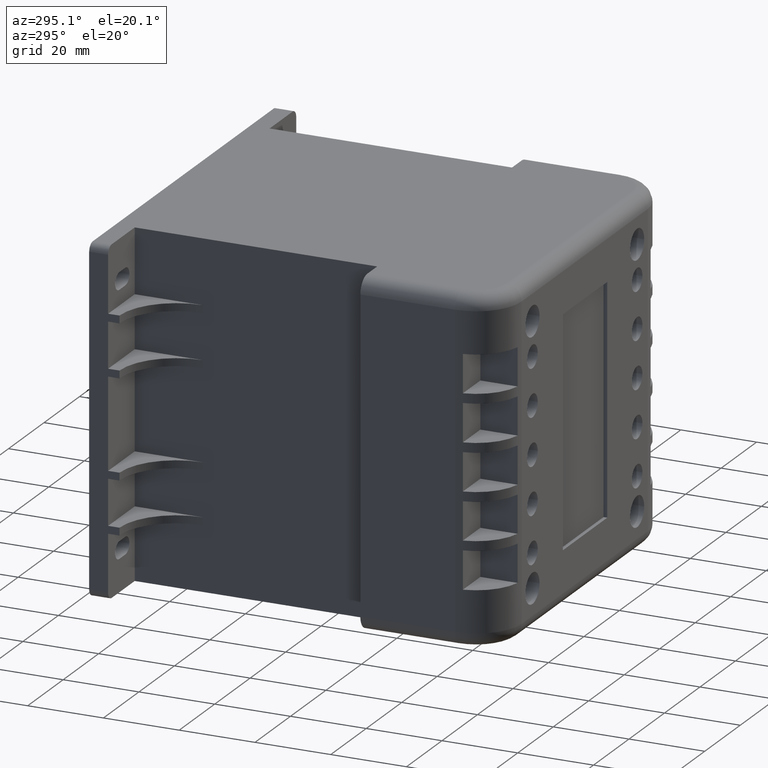
[diagram: clean part render]
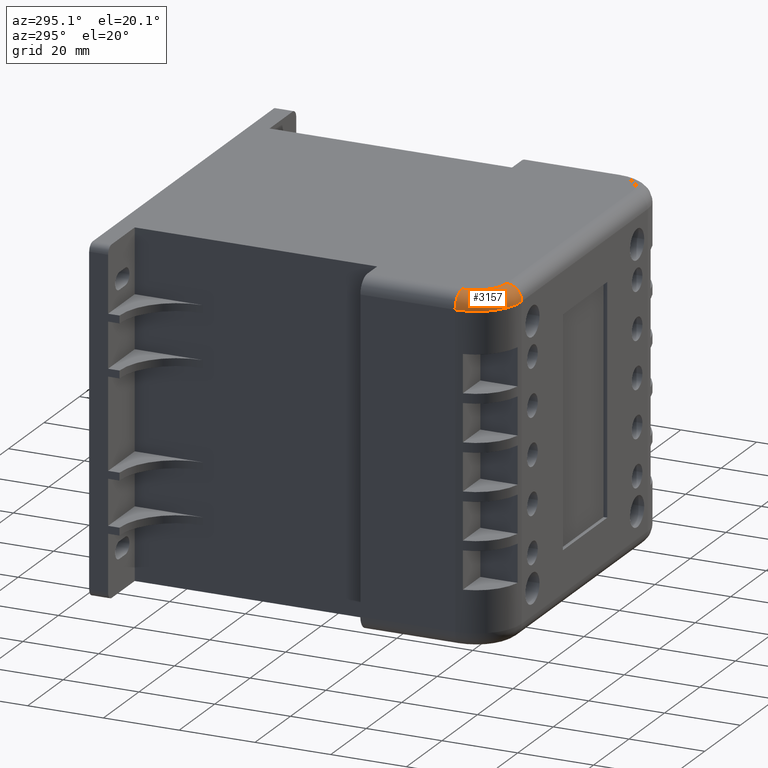
[diagram: same view with one face highlighted and labeled with its STEP entity id]
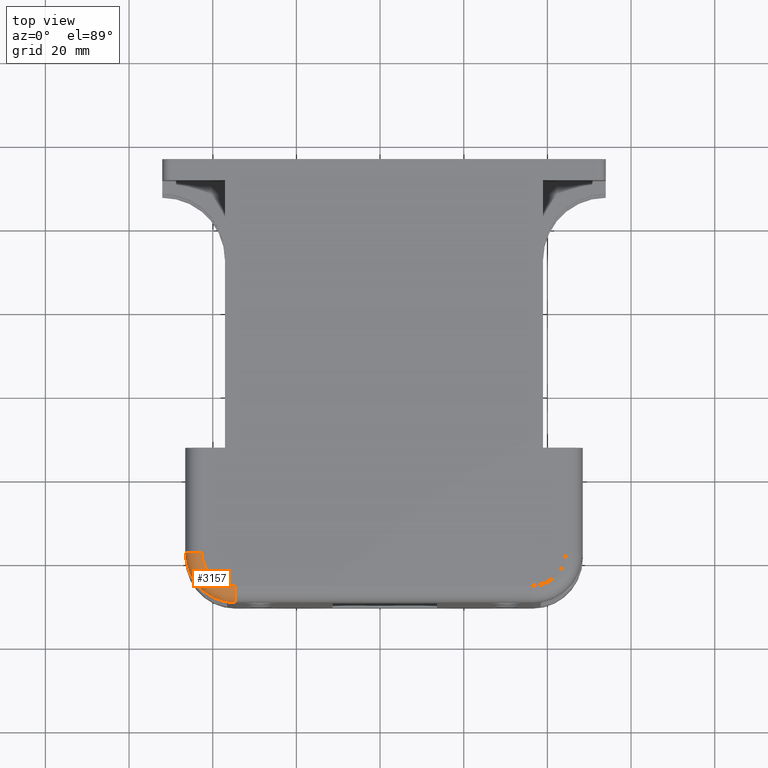
[diagram: same view with one face highlighted and labeled with its STEP entity id]
A machine part, auxiliary view. The second image highlights one B-rep face of the part: STEP entity #3157.
A second angle (top view) of the same face is appended — the face is thin or edge-on in the first view.
In plain terms, the highlighted toroidal blend (fillet) surface has major radius 8 mm and minor (blend) radius 4 mm.
Its self-contained STEP definition (entity closure, byte-faithful):
#26=TOROIDAL_SURFACE('',#3501,8.,4.);
#113=CIRCLE('',#3500,4.);
#114=CIRCLE('',#3502,4.00000000000004);
#115=CIRCLE('',#3503,12.);
#116=CIRCLE('',#3504,8.);
#288=FACE_OUTER_BOUND('',#478,.T.);
#478=EDGE_LOOP('',(#2142,#2143,#2144,#2145));
#1326=VERTEX_POINT('',#4854);
#1331=VERTEX_POINT('',#4870);
#1332=VERTEX_POINT('',#4871);
#1333=VERTEX_POINT('',#4876);
#1642=EDGE_CURVE('',#1331,#1332,#113,.T.);
#1645=EDGE_CURVE('',#1333,#1326,#114,.T.);
#1646=EDGE_CURVE('',#1326,#1332,#115,.T.);
#1647=EDGE_CURVE('',#1331,#1333,#116,.T.);
#2142=ORIENTED_EDGE('',*,*,#1645,.T.);
#2143=ORIENTED_EDGE('',*,*,#1646,.T.);
#2144=ORIENTED_EDGE('',*,*,#1642,.F.);
#2145=ORIENTED_EDGE('',*,*,#1647,.T.);
#3157=ADVANCED_FACE('',(#288),#26,.T.);
#3500=AXIS2_PLACEMENT_3D('',#4872,#3984,#3985);
#3501=AXIS2_PLACEMENT_3D('',#4875,#3988,#3989);
#3502=AXIS2_PLACEMENT_3D('',#4877,#3990,#3991);
#3503=AXIS2_PLACEMENT_3D('',#4878,#3992,#3993);
#3504=AXIS2_PLACEMENT_3D('',#4879,#3994,#3995);
#3984=DIRECTION('center_axis',(-1.,-5.55111512312578E-16,0.));
#3985=DIRECTION('ref_axis',(0.,0.,1.));
#3988=DIRECTION('center_axis',(0.,0.,-1.));
#3989=DIRECTION('ref_axis',(-1.,0.,0.));
#3990=DIRECTION('center_axis',(0.,1.,0.));
#3991=DIRECTION('ref_axis',(0.,0.,1.));
#3992=DIRECTION('center_axis',(0.,0.,1.));
#3993=DIRECTION('ref_axis',(0.707106781186548,0.707106781186547,0.));
#3994=DIRECTION('center_axis',(0.,0.,-1.));
#3995=DIRECTION('ref_axis',(0.707106781186548,0.707106781186547,0.));
#4854=CARTESIAN_POINT('',(3.39481529307603E-14,25.,86.));
#4870=CARTESIAN_POINT('',(-12.,33.,90.));
#4871=CARTESIAN_POINT('',(-12.,37.,86.));
#4872=CARTESIAN_POINT('Origin',(-12.,33.,86.));
#4875=CARTESIAN_POINT('Origin',(-12.,25.,86.));
#4876=CARTESIAN_POINT('',(-3.99999999999997,25.,90.));
#4877=CARTESIAN_POINT('Origin',(-3.99999999999997,25.,86.));
#4878=CARTESIAN_POINT('Origin',(-12.,25.,86.));
#4879=CARTESIAN_POINT('Origin',(-12.,25.,90.));